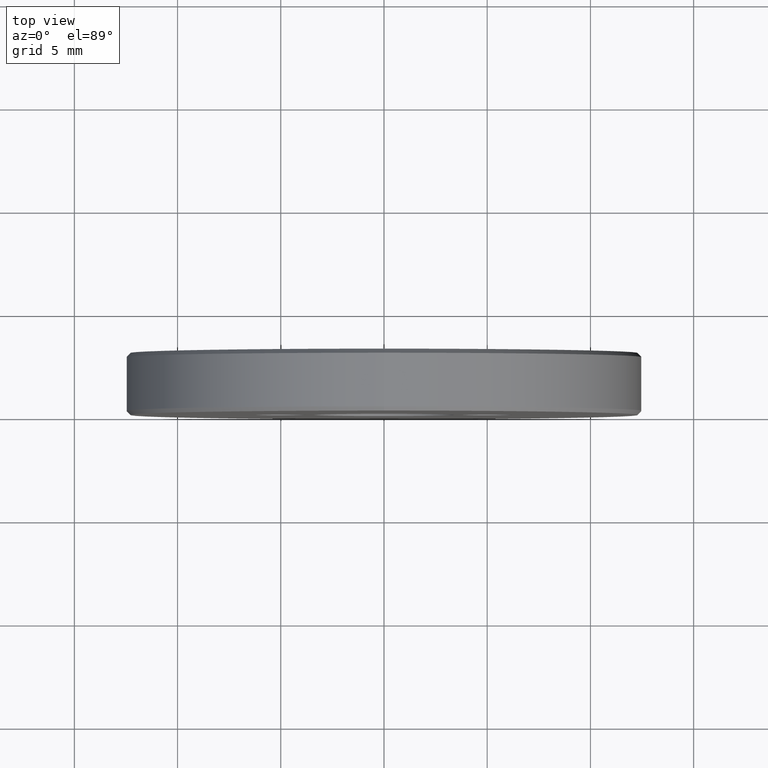
[diagram: clean part render]
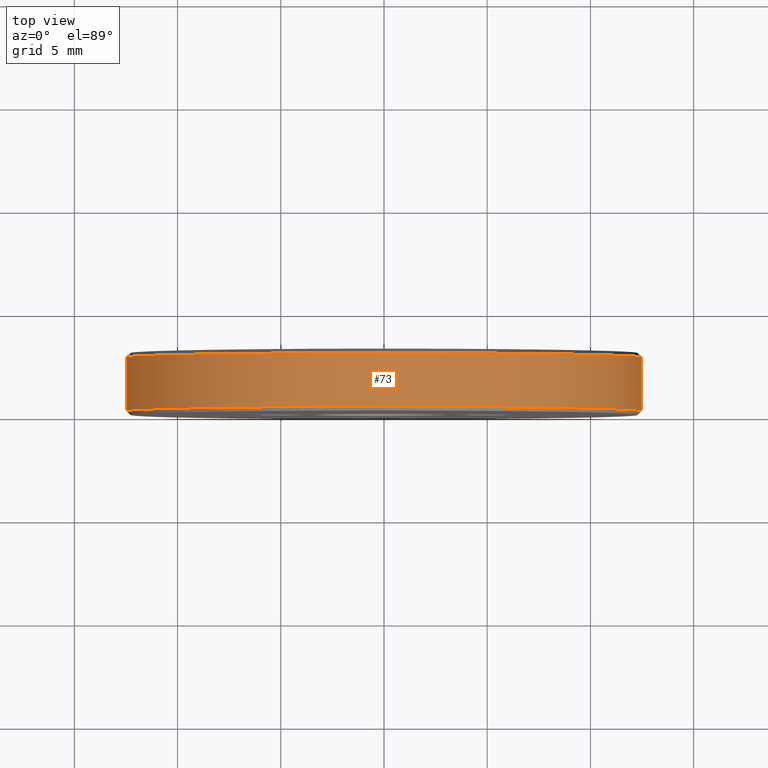
[diagram: same view with one face highlighted and labeled with its STEP entity id]
A machine part, top view. The second image highlights one B-rep face of the part: STEP entity #73.
In plain terms, the highlighted cylindrical surface (bore or boss wall) has radius 12.5 mm, axis along (-0, -1, -0).
Its self-contained STEP definition (entity closure, byte-faithful):
#4 = DIRECTION ( 'NONE',  ( 0.000000000000000000, 0.000000000000000000, 1.000000000000000000 ) ) ;
#8 = CARTESIAN_POINT ( 'NONE',  ( 0.000000000000000000, 2.800000000000002931, 0.000000000000000000 ) ) ;
#37 = DIRECTION ( 'NONE',  ( 0.000000000000000000, 0.000000000000000000, 1.000000000000000000 ) ) ;
#56 = EDGE_LOOP ( 'NONE', ( #288 ) ) ;
#67 = CIRCLE ( 'NONE', #228, 12.50000000000000000 ) ;
#71 = VERTEX_POINT ( 'NONE', #77 ) ;
#73 = ADVANCED_FACE ( 'NONE', ( #118, #391 ), #368, .T. ) ;
#77 = CARTESIAN_POINT ( 'NONE',  ( 0.000000000000000000, 2.800000000000002931, 12.50000000000000000 ) ) ;
#109 = ORIENTED_EDGE ( 'NONE', *, *, #159, .T. ) ;
#118 = FACE_OUTER_BOUND ( 'NONE', #56, .T. ) ;
#159 = EDGE_CURVE ( 'NONE', #71, #71, #259, .T. ) ;
#190 = AXIS2_PLACEMENT_3D ( 'NONE', #300, #214, #335 ) ;
#201 = AXIS2_PLACEMENT_3D ( 'NONE', #8, #344, #4 ) ;
#214 = DIRECTION ( 'NONE',  ( -0.000000000000000000, -1.000000000000000000, -0.000000000000000000 ) ) ;
#228 = AXIS2_PLACEMENT_3D ( 'NONE', #231, #282, #37 ) ;
#231 = CARTESIAN_POINT ( 'NONE',  ( 0.000000000000000000, 0.2000000000000022593, 0.000000000000000000 ) ) ;
#256 = EDGE_LOOP ( 'NONE', ( #109 ) ) ;
#259 = CIRCLE ( 'NONE', #201, 12.50000000000000000 ) ;
#282 = DIRECTION ( 'NONE',  ( -0.000000000000000000, 1.000000000000000000, -0.000000000000000000 ) ) ;
#288 = ORIENTED_EDGE ( 'NONE', *, *, #311, .T. ) ;
#300 = CARTESIAN_POINT ( 'NONE',  ( 0.000000000000000000, 3.000000000000000000, 0.000000000000000000 ) ) ;
#311 = EDGE_CURVE ( 'NONE', #346, #346, #67, .T. ) ;
#335 = DIRECTION ( 'NONE',  ( 0.000000000000000000, 0.000000000000000000, -1.000000000000000000 ) ) ;
#344 = DIRECTION ( 'NONE',  ( 0.000000000000000000, -1.000000000000000000, 0.000000000000000000 ) ) ;
#346 = VERTEX_POINT ( 'NONE', #388 ) ;
#368 = CYLINDRICAL_SURFACE ( 'NONE', #190, 12.50000000000000000 ) ;
#388 = CARTESIAN_POINT ( 'NONE',  ( 0.000000000000000000, 0.2000000000000022593, 12.50000000000000000 ) ) ;
#391 = FACE_OUTER_BOUND ( 'NONE', #256, .T. ) ;